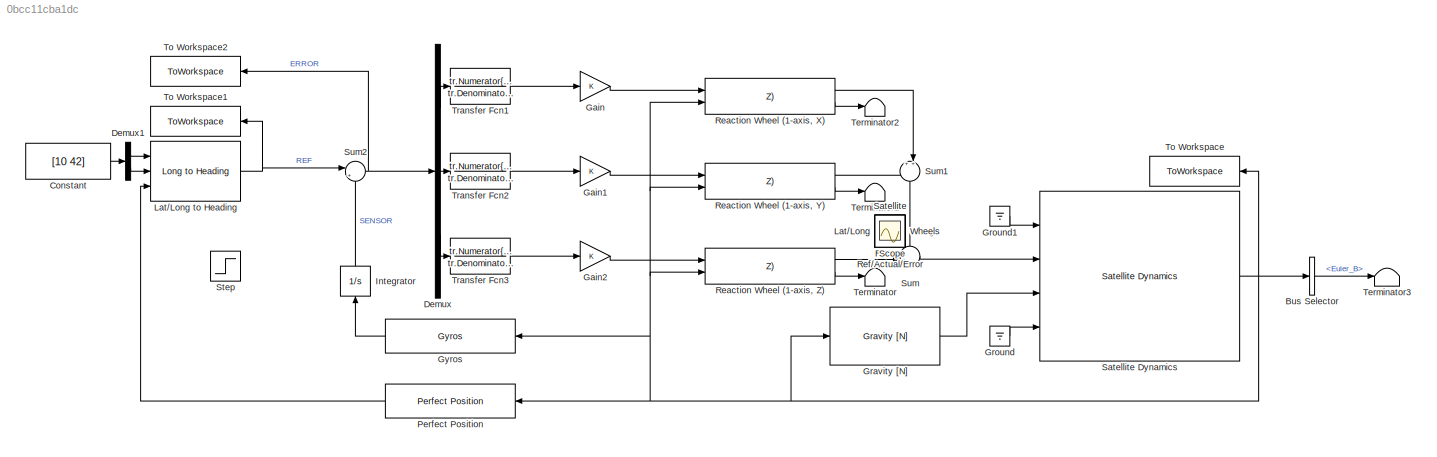
MODEL slx_0bcc11cba1dc
KIND model
CONFIG AbsTol = auto
CONFIG EnableMultiTasking = off
CONFIG FixedStep = 0.01
CONFIG MaxStep = auto
CONFIG MinStep = auto
CONFIG RelTol = 1e-3
CONFIG SampleTimeConstraint = Unconstrained
CONFIG Solver = ode14x
CONFIG SolverName = ode14x
CONFIG StartTime = 0.0
CONFIG StopTime = 300
BLOCK [BusSelector] Bus Selector
  OutputAsBus = off
  OutputSignals = Euler_B
  Ports = [1, 1]
BLOCK [Constant] Constant
  Value = [10 42]
BLOCK [Demux] Demux
  DisplayOption = bar
  Outputs = 3
  Ports = [1, 3]
BLOCK [Demux] Demux1
  DisplayOption = bar
  Outputs = 2
  Ports = [1, 2]
BLOCK [Gain] Gain
  OutDataTypeStr = Inherit: Inherit via internal rule
  ParamDataTypeStr = Inherit: Inherit via internal rule
  SaturateOnIntegerOverflow = off
BLOCK [Gain] Gain1
  OutDataTypeStr = Inherit: Inherit via internal rule
  ParamDataTypeStr = Inherit: Inherit via internal rule
  SaturateOnIntegerOverflow = off
BLOCK [Gain] Gain2
  OutDataTypeStr = Inherit: Inherit via internal rule
  ParamDataTypeStr = Inherit: Inherit via internal rule
  SaturateOnIntegerOverflow = off
BLOCK [Reference] Gravity [N]  REF=scars_library/Environment/Gravity [N]  (lib defined in slx_0992aaab4a30)
  Ports = [1, 1]
  SourceBlock = scars_library/Environment/Gravity [N]
  SourceType = Gravity
BLOCK [Ground] Ground
BLOCK [Ground] Ground1
BLOCK [Reference] Gyros  REF=scars_library/Sensors/Gyros  (lib defined in slx_0992aaab4a30)
  Ports = [1, 1]
  SourceBlock = scars_library/Sensors/Gyros
BLOCK [Integrator] Integrator
  InitialCondition = [0.76 2.32 1.71]
  Ports = [1, 1]
BLOCK [Scope] Lat//Long
  Floating = off
  IOType = viewer
  NumInputPorts = 1
  Ports = []
  ScopeSpecificationString = Simulink.scopes.TimeScopeBlockCfg('CurrentConfiguration', extmgr.ConfigurationSet(extmgr.Configuration('Core','General UI',true),extmgr.Configuration('Core','Source UI',true),extmgr.Configuration('Sources','WiredSimulink',true,'DataLoggingVariableName','ScopeData4'),extmgr.Configuration('Visuals','Time Domain',true,'SerializedDisplays',{struct('MinYLimReal','-47301.70768','MaxYLimReal','425815.439...<+1958ch>
BLOCK [Reference] Lat//Long to Heading  REF=scars_library/ Control Algorithms /Lat//Long to Heading  (lib defined in slx_0992aaab4a30)
  Ports = [3, 1]
  SourceBlock = scars_library/ Control Algorithms /Lat//Long to Heading
BLOCK [Scope] Omega
  Floating = off
  IOType = viewer
  NumInputPorts = 1
  Ports = []
  ScopeSpecificationString = Simulink.scopes.TimeScopeBlockCfg('CurrentConfiguration', extmgr.ConfigurationSet(extmgr.Configuration('Core','General UI',true),extmgr.Configuration('Core','Source UI',true),extmgr.Configuration('Sources','WiredSimulink',true,'DataLoggingVariableName','ScopeData1'),extmgr.Configuration('Visuals','Time Domain',true,'SerializedDisplays',{struct('MinYLimReal','-0.01045','MaxYLimReal','0.01161','YLab...<+1603ch>
BLOCK [Reference] Perfect Position  REF=scars_library/Sensors/Perfect Position  (lib defined in slx_0992aaab4a30)
  Ports = [1, 1]
  SourceBlock = scars_library/Sensors/Perfect Position
BLOCK [Scope] RW Y
  Floating = off
  IOType = viewer
  NumInputPorts = 1
  Ports = []
  ScopeSpecificationString = Simulink.scopes.TimeScopeBlockCfg('CurrentConfiguration', extmgr.ConfigurationSet(extmgr.Configuration('Core','General UI',true),extmgr.Configuration('Core','Source UI',true),extmgr.Configuration('Sources','WiredSimulink',true,'DataLoggingVariableName','ScopeData1'),extmgr.Configuration('Visuals','Time Domain',true,'SerializedDisplays',{struct('MinYLimReal','-0.0000000000000000001','MaxYLimReal','...<+4933ch>
BLOCK [Reference] Reaction Wheel (1-axis, X)  REF=scars_library/Actuators/Reaction Wheel (1-axis, X//Y//Z)  (lib defined in slx_0992aaab4a30)
  Ports = [2, 2]
  SourceBlock = scars_library/Actuators/Reaction Wheel (1-axis, X//Y//Z)
BLOCK [Reference] Reaction Wheel (1-axis, Y)  REF=scars_library/Actuators/Reaction Wheel (1-axis, X//Y//Z)  (lib defined in slx_0992aaab4a30)
  Ports = [2, 2]
  SourceBlock = scars_library/Actuators/Reaction Wheel (1-axis, X//Y//Z)
BLOCK [Reference] Reaction Wheel (1-axis, Z)  REF=scars_library/Actuators/Reaction Wheel (1-axis, X//Y//Z)  (lib defined in slx_0992aaab4a30)
  Ports = [2, 2]
  SourceBlock = scars_library/Actuators/Reaction Wheel (1-axis, X//Y//Z)
BLOCK [Scope] Ref//Actual//Error
  Floating = off
  IOType = viewer
  NumInputPorts = 1
  Ports = []
  ScopeSpecificationString = Simulink.scopes.TimeScopeBlockCfg('CurrentConfiguration', extmgr.ConfigurationSet(extmgr.Configuration('Core','General UI',true),extmgr.Configuration('Core','Source UI',true),extmgr.Configuration('Sources','WiredSimulink',true,'DataLoggingVariableName','ScopeData3'),extmgr.Configuration('Visuals','Time Domain',true,'SerializedDisplays',{struct('MinYLimReal','0.22583','MaxYLimReal','2.60369','YLabe...<+2827ch>
BLOCK [Scope] Satellite
  Floating = off
  IOType = viewer
  NumInputPorts = 1
  Ports = []
  ScopeSpecificationString = Simulink.scopes.TimeScopeBlockCfg('CurrentConfiguration', extmgr.ConfigurationSet(extmgr.Configuration('Core','General UI',true),extmgr.Configuration('Core','Source UI',true),extmgr.Configuration('Sources','WiredSimulink',true),extmgr.Configuration('Visuals','Time Domain',true,'SerializedDisplays',{struct('MinYLimReal','-3.92592','MaxYLimReal','3.92619','YLabelReal','','MinYLimMag','0.00000','MaxY...<+3729ch>
BLOCK [Reference] Satellite Dynamics  REF=scars_library/Advanced/Satellite Dynamics  (lib defined in slx_0992aaab4a30)
  Ports = [4, 1]
  SourceBlock = scars_library/Advanced/Satellite Dynamics
  SourceType = Sattellite Dynamics
BLOCK [Scope] Scope
  Floating = off
  IOType = viewer
  NumInputPorts = 1
  Ports = []
  ScopeSpecificationString = Simulink.scopes.TimeScopeBlockCfg('CurrentConfiguration', extmgr.ConfigurationSet(extmgr.Configuration('Core','General UI',true),extmgr.Configuration('Core','Source UI',true),extmgr.Configuration('Sources','WiredSimulink',true,'DataLoggingVariableName','ScopeData2'),extmgr.Configuration('Visuals','Time Domain',true,'SerializedDisplays',{struct('MinYLimReal','-8033.55331','MaxYLimReal','11556.59673...<+1437ch>
BLOCK [Step] Step
  SampleTime = 0
  Time = 180
BLOCK [Sum] Sum
  IconShape = round
  InputSameDT = off
  Inputs = ++|
  OutDataTypeStr = Inherit: Inherit via internal rule
  Ports = [2, 1]
  SaturateOnIntegerOverflow = off
BLOCK [Sum] Sum1
  IconShape = round
  InputSameDT = off
  Inputs = ++|
  OutDataTypeStr = Inherit: Inherit via internal rule
  Ports = [2, 1]
  SaturateOnIntegerOverflow = off
BLOCK [Sum] Sum2
  IconShape = round
  InputSameDT = off
  Inputs = |+-
  OutDataTypeStr = Inherit: Inherit via internal rule
  Ports = [2, 1]
  SaturateOnIntegerOverflow = off
BLOCK [Terminator] Terminator
BLOCK [Terminator] Terminator1
BLOCK [Terminator] Terminator2
BLOCK [Terminator] Terminator3
BLOCK [ToWorkspace] To Workspace
  FixptAsFi = on
  MaxDataPoints = inf
  Ports = [1]
  SampleTime = -1
  SaveFormat = Timeseries
  VariableName = SatStates
BLOCK [ToWorkspace] To Workspace1
  FixptAsFi = on
  MaxDataPoints = inf
  Ports = [1]
  SampleTime = -1
  SaveFormat = Timeseries
  VariableName = ref
BLOCK [ToWorkspace] To Workspace2
  FixptAsFi = on
  MaxDataPoints = inf
  Ports = [1]
  SampleTime = -1
  SaveFormat = Timeseries
  VariableName = error
BLOCK [TransferFcn] Transfer Fcn1
  Denominator = tr.Denominator{1, 1}
  Numerator = tr.Numerator{1, 1}
BLOCK [TransferFcn] Transfer Fcn2
  Denominator = tr.Denominator{1, 1}
  Numerator = tr.Numerator{1, 1}
BLOCK [TransferFcn] Transfer Fcn3
  Denominator = tr.Denominator{1, 1}
  Numerator = tr.Numerator{1, 1}
BLOCK [Scope] Wheels
  Floating = off
  IOType = viewer
  NumInputPorts = 1
  Ports = []
  ScopeSpecificationString = Simulink.scopes.TimeScopeBlockCfg('CurrentConfiguration', extmgr.ConfigurationSet(extmgr.Configuration('Core','General UI',true),extmgr.Configuration('Core','Source UI',true),extmgr.Configuration('Sources','WiredSimulink',true,'DataLoggingVariableName','ScopeData1'),extmgr.Configuration('Visuals','Time Domain',true,'SerializedDisplays',{struct('MinYLimReal','-0.000000001','MaxYLimReal','0.00000000...<+3978ch>
LINE Bus Selector:1 -> Terminator3:1
LINE Constant:1 -> Demux1:1
LINE Demux1:1 -> Lat//Long to Heading:1
LINE Demux1:2 -> Lat//Long to Heading:2
LINE Demux:1 -> Transfer Fcn1:1
LINE Demux:2 -> Transfer Fcn2:1
LINE Demux:3 -> Transfer Fcn3:1
LINE Gain1:1 -> Reaction Wheel (1-axis, Y):1
LINE Gain2:1 -> Reaction Wheel (1-axis, Z):1
LINE Gain:1 -> Reaction Wheel (1-axis, X):1
LINE Gravity [N]:1 -> Satellite Dynamics:3
LINE Ground1:1 -> Satellite Dynamics:1
LINE Ground:1 -> Satellite Dynamics:4
LINE Gyros:1 -> Integrator:1
LINE Integrator:1 -> Sum2:2
NET Lat//Long to Heading:1 -> Sum2:1, To Workspace1:1
LINE Perfect Position:1 -> Lat//Long to Heading:3
LINE Reaction Wheel (1-axis, X):1 -> Sum1:2
LINE Reaction Wheel (1-axis, X):2 -> Terminator2:1
LINE Reaction Wheel (1-axis, Y):1 -> Sum1:1
LINE Reaction Wheel (1-axis, Y):2 -> Terminator1:1
LINE Reaction Wheel (1-axis, Z):1 -> Sum:2
LINE Reaction Wheel (1-axis, Z):2 -> Terminator:1
NET Satellite Dynamics:1 -> Bus Selector:1, Gravity [N]:1, Gyros:1, Perfect Position:1, Reaction Wheel (1-axis, X):2, Reaction Wheel (1-axis, Y):2, Reaction Wheel (1-axis, Z):2, To Workspace:1
LINE Sum1:1 -> Sum:1
NET Sum2:1 -> Demux:1, To Workspace2:1
LINE Sum:1 -> Satellite Dynamics:2
LINE Transfer Fcn1:1 -> Gain:1
LINE Transfer Fcn2:1 -> Gain1:1
LINE Transfer Fcn3:1 -> Gain2:1
note: NET lines group one-source signal fan-out (src -> all destinations, sorted); 1:1 wires keep LINE
